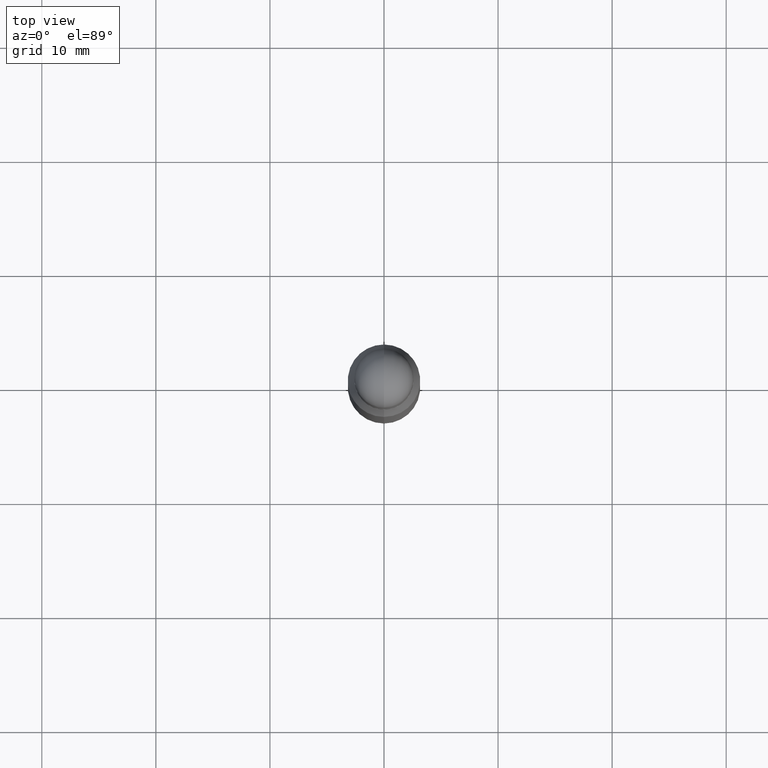
[diagram: clean part render]
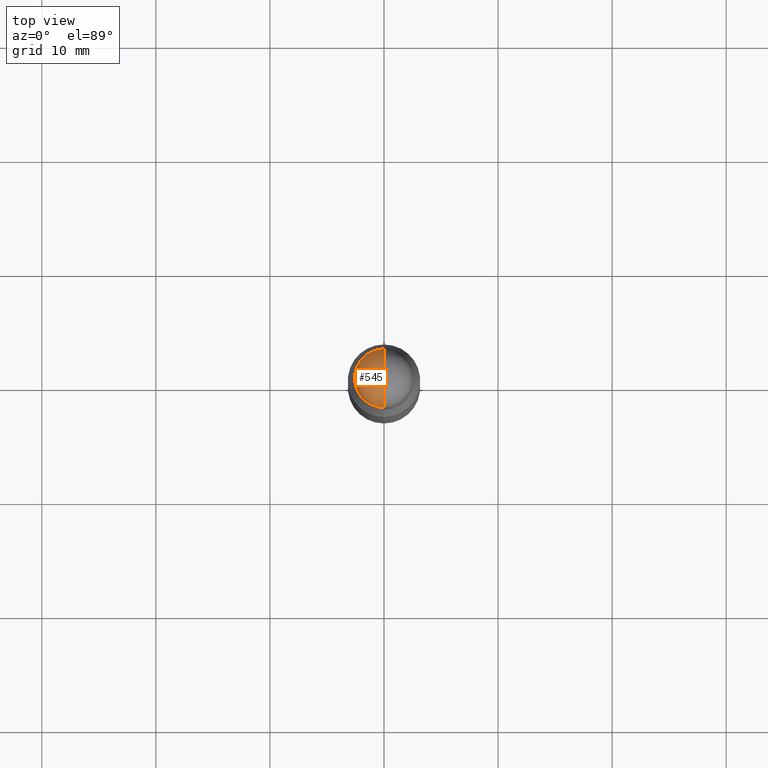
[diagram: same view with one face highlighted and labeled with its STEP entity id]
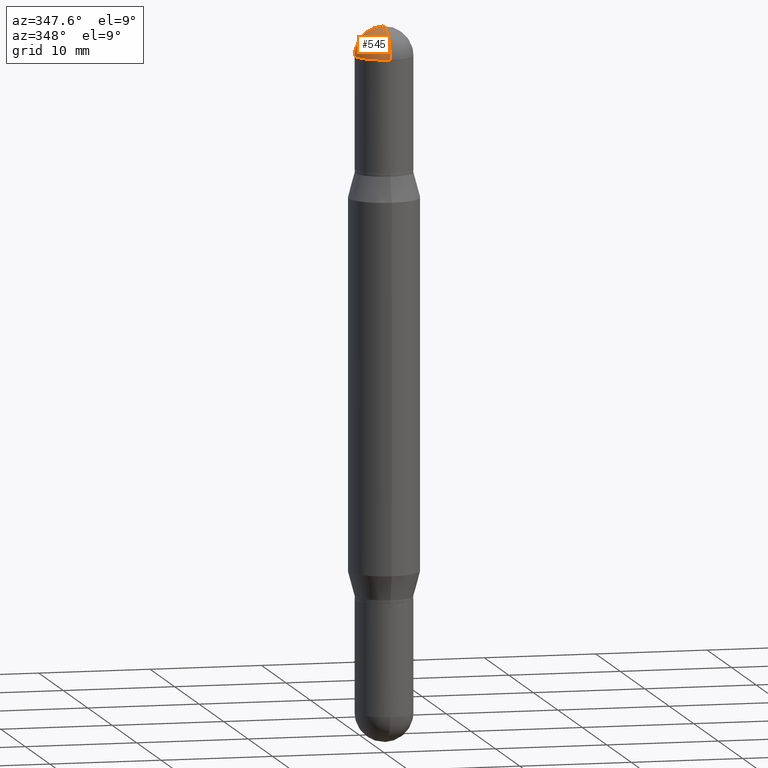
[diagram: same view with one face highlighted and labeled with its STEP entity id]
A machine part, top view. The second image highlights one B-rep face of the part: STEP entity #545.
A second angle (auxiliary view) of the same face is appended — the face is thin or edge-on in the first view.
In plain terms, the highlighted spherical surface has radius 2.5794 mm.
Its self-contained STEP definition (entity closure, byte-faithful):
#60 = DIRECTION ( 'NONE',  ( 2.445468806185136597E-29, 3.479614466977828254E-15, 1.000000000000000000 ) ) ;
#107 = ORIENTED_EDGE ( 'NONE', *, *, #149, .T. ) ;
#149 = EDGE_CURVE ( 'NONE', #1075, #679, #529, .T. ) ;
#181 = CARTESIAN_POINT ( 'NONE',  ( 7.091198599190993550E-16, 0.1015499999999996822, -0.1015500000000002651 ) ) ;
#225 = DIRECTION ( 'NONE',  ( 6.860497997771530774E-15, 1.000000000000000000, 0.000000000000000000 ) ) ;
#276 = AXIS2_PLACEMENT_3D ( 'NONE', #829, #909, #225 ) ;
#277 = SPHERICAL_SURFACE ( 'NONE', #950, 0.1015499999999999736 ) ;
#282 = CARTESIAN_POINT ( 'NONE',  ( -0.1015500000000000985, -3.647310594632026057E-16, -0.1015499999999999042 ) ) ;
#298 = AXIS2_PLACEMENT_3D ( 'NONE', #730, #386, #641 ) ;
#304 = DIRECTION ( 'NONE',  ( 2.445468806185136597E-29, 3.479614466977828254E-15, 1.000000000000000000 ) ) ;
#347 = EDGE_CURVE ( 'NONE', #409, #942, #501, .T. ) ;
#363 = AXIS2_PLACEMENT_3D ( 'NONE', #580, #60, #925 ) ;
#386 = DIRECTION ( 'NONE',  ( -1.000000000000000000, 6.982962677686265922E-15, 1.566701062080016245E-31 ) ) ;
#395 = CARTESIAN_POINT ( 'NONE',  ( -6.966835716736402566E-16, -0.1015500000000003761, -0.1015499999999995434 ) ) ;
#409 = VERTEX_POINT ( 'NONE', #462 ) ;
#457 = EDGE_CURVE ( 'NONE', #679, #942, #914, .T. ) ;
#462 = CARTESIAN_POINT ( 'NONE',  ( 6.152088223088502938E-29, 4.018060600305228499E-17, 6.829619984160658046E-17 ) ) ;
#481 = DIRECTION ( 'NONE',  ( 6.982962677686266711E-15, 1.000000000000000000, -3.530822739226338030E-15 ) ) ;
#483 = CIRCLE ( 'NONE', #298, 0.1015499999999999736 ) ;
#501 = CIRCLE ( 'NONE', #276, 0.1015499999999999736 ) ;
#529 = CIRCLE ( 'NONE', #363, 0.1015500000000000985 ) ;
#545 = ADVANCED_FACE ( 'NONE', ( #904 ), #277, .T. ) ;
#580 = CARTESIAN_POINT ( 'NONE',  ( 5.865334658194741045E-29, -3.681884389532433645E-16, -0.1015499999999999042 ) ) ;
#599 = EDGE_LOOP ( 'NONE', ( #703, #745, #107, #841 ) ) ;
#626 = CARTESIAN_POINT ( 'NONE',  ( 5.899408758987094508E-29, -3.193923872412167569E-16, -0.1015499999999999042 ) ) ;
#641 = DIRECTION ( 'NONE',  ( -6.982962677686266711E-15, -1.000000000000000000, 0.000000000000000000 ) ) ;
#653 = DIRECTION ( 'NONE',  ( 1.000000000000000000, -6.982962677686265922E-15, 0.000000000000000000 ) ) ;
#679 = VERTEX_POINT ( 'NONE', #282 ) ;
#703 = ORIENTED_EDGE ( 'NONE', *, *, #347, .F. ) ;
#730 = CARTESIAN_POINT ( 'NONE',  ( 5.899408758987094508E-29, -3.193923872412167569E-16, -0.1015499999999999042 ) ) ;
#732 = CARTESIAN_POINT ( 'NONE',  ( 5.865334658194741045E-29, -3.681884389532433645E-16, -0.1015499999999999042 ) ) ;
#745 = ORIENTED_EDGE ( 'NONE', *, *, #749, .T. ) ;
#749 = EDGE_CURVE ( 'NONE', #409, #1075, #483, .T. ) ;
#829 = CARTESIAN_POINT ( 'NONE',  ( 5.899408758987094508E-29, -3.193923872412167569E-16, -0.1015499999999999042 ) ) ;
#841 = ORIENTED_EDGE ( 'NONE', *, *, #457, .T. ) ;
#904 = FACE_OUTER_BOUND ( 'NONE', #599, .T. ) ;
#909 = DIRECTION ( 'NONE',  ( 1.000000000000000000, -6.860497997771530774E-15, -5.827999781331232286E-31 ) ) ;
#914 = CIRCLE ( 'NONE', #1049, 0.1015500000000000985 ) ;
#925 = DIRECTION ( 'NONE',  ( 1.000000000000000000, -6.982962677686265922E-15, 0.000000000000000000 ) ) ;
#942 = VERTEX_POINT ( 'NONE', #395 ) ;
#950 = AXIS2_PLACEMENT_3D ( 'NONE', #626, #1073, #481 ) ;
#1049 = AXIS2_PLACEMENT_3D ( 'NONE', #732, #304, #653 ) ;
#1073 = DIRECTION ( 'NONE',  ( 1.000000000000000000, -6.982962677686266711E-15, -1.566701062079991284E-31 ) ) ;
#1075 = VERTEX_POINT ( 'NONE', #181 ) ;